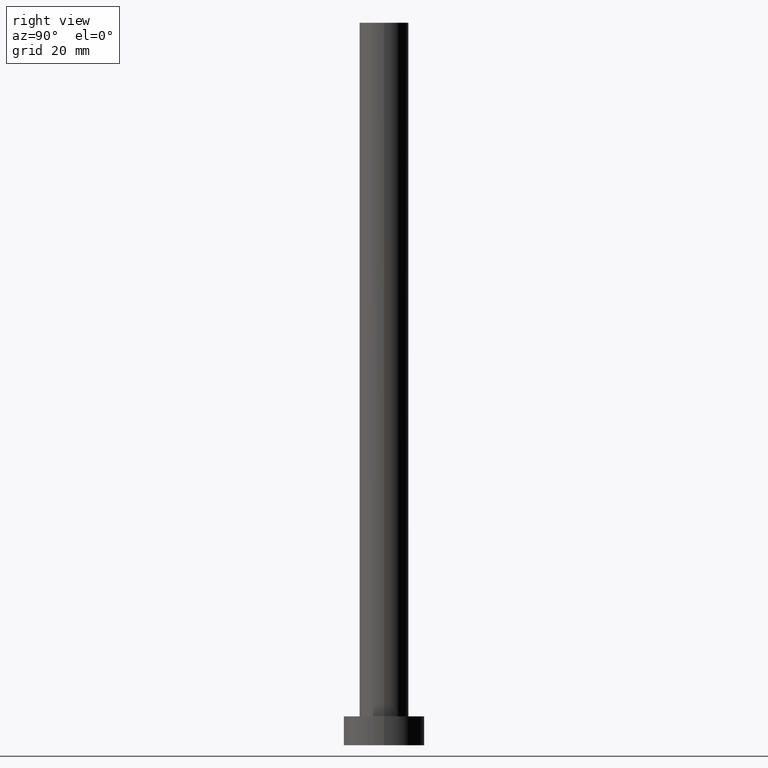
[diagram: clean part render]
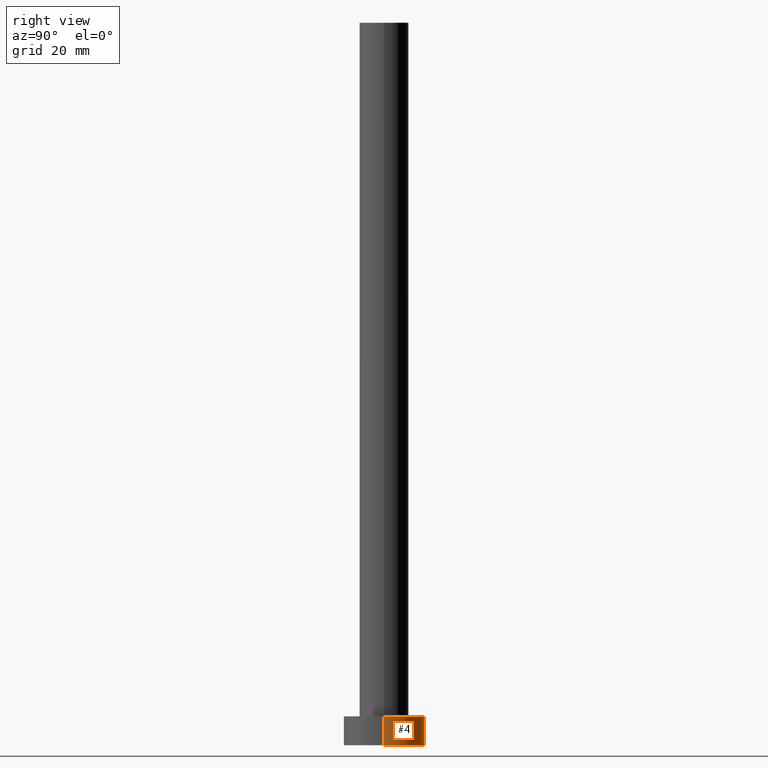
[diagram: same view with one face highlighted and labeled with its STEP entity id]
A machine part, right view. The second image highlights one B-rep face of the part: STEP entity #4.
In plain terms, the highlighted cylindrical surface (partial cylindrical patch) has radius 7 mm, axis along (-0, -0, -1).
Its self-contained STEP definition (entity closure, byte-faithful):
#1 = DIRECTION ( 'NONE',  ( -1.000000000000000000, 0.000000000000000000, 0.000000000000000000 ) ) ;
#4 = ADVANCED_FACE ( 'NONE', ( #84 ), #5, .T. ) ;
#5 = CYLINDRICAL_SURFACE ( 'NONE', #35, 7.000000000000000000 ) ;
#9 = CIRCLE ( 'NONE', #155, 7.000000000000000000 ) ;
#16 = ORIENTED_EDGE ( 'NONE', *, *, #132, .F. ) ;
#17 = CARTESIAN_POINT ( 'NONE',  ( -7.000000000000000000, 0.000000000000000000, 5.000000000000000000 ) ) ;
#18 = DIRECTION ( 'NONE',  ( 1.000000000000000000, 0.000000000000000000, 0.000000000000000000 ) ) ;
#19 = DIRECTION ( 'NONE',  ( 0.000000000000000000, 0.000000000000000000, 1.000000000000000000 ) ) ;
#25 = VERTEX_POINT ( 'NONE', #120 ) ;
#35 = AXIS2_PLACEMENT_3D ( 'NONE', #105, #179, #1 ) ;
#43 = CIRCLE ( 'NONE', #44, 7.000000000000000000 ) ;
#44 = AXIS2_PLACEMENT_3D ( 'NONE', #73, #55, #18 ) ;
#52 = ORIENTED_EDGE ( 'NONE', *, *, #151, .T. ) ;
#55 = DIRECTION ( 'NONE',  ( 0.000000000000000000, 0.000000000000000000, 1.000000000000000000 ) ) ;
#64 = VERTEX_POINT ( 'NONE', #92 ) ;
#69 = LINE ( 'NONE', #137, #134 ) ;
#73 = CARTESIAN_POINT ( 'NONE',  ( 0.000000000000000000, 0.000000000000000000, 5.000000000000000000 ) ) ;
#77 = CARTESIAN_POINT ( 'NONE',  ( 0.000000000000000000, 0.000000000000000000, 0.000000000000000000 ) ) ;
#84 = FACE_OUTER_BOUND ( 'NONE', #230, .T. ) ;
#86 = ORIENTED_EDGE ( 'NONE', *, *, #157, .F. ) ;
#92 = CARTESIAN_POINT ( 'NONE',  ( 7.000000000000000000, 8.572527594031473190E-16, 0.000000000000000000 ) ) ;
#103 = VERTEX_POINT ( 'NONE', #145 ) ;
#104 = DIRECTION ( 'NONE',  ( 1.000000000000000000, 0.000000000000000000, 0.000000000000000000 ) ) ;
#105 = CARTESIAN_POINT ( 'NONE',  ( 0.000000000000000000, 0.000000000000000000, 5.000000000000000000 ) ) ;
#116 = VECTOR ( 'NONE', #152, 1000.000000000000000 ) ;
#120 = CARTESIAN_POINT ( 'NONE',  ( -7.000000000000000000, 0.000000000000000000, 5.000000000000000000 ) ) ;
#132 = EDGE_CURVE ( 'NONE', #25, #103, #194, .T. ) ;
#134 = VECTOR ( 'NONE', #213, 1000.000000000000000 ) ;
#137 = CARTESIAN_POINT ( 'NONE',  ( 7.000000000000000000, 8.572527594031473190E-16, 5.000000000000000000 ) ) ;
#145 = CARTESIAN_POINT ( 'NONE',  ( -7.000000000000000000, 0.000000000000000000, 0.000000000000000000 ) ) ;
#151 = EDGE_CURVE ( 'NONE', #233, #64, #69, .T. ) ;
#152 = DIRECTION ( 'NONE',  ( -0.000000000000000000, -0.000000000000000000, -1.000000000000000000 ) ) ;
#155 = AXIS2_PLACEMENT_3D ( 'NONE', #77, #19, #104 ) ;
#157 = EDGE_CURVE ( 'NONE', #233, #25, #43, .T. ) ;
#163 = ORIENTED_EDGE ( 'NONE', *, *, #204, .T. ) ;
#179 = DIRECTION ( 'NONE',  ( -0.000000000000000000, -0.000000000000000000, -1.000000000000000000 ) ) ;
#194 = LINE ( 'NONE', #17, #116 ) ;
#204 = EDGE_CURVE ( 'NONE', #64, #103, #9, .T. ) ;
#213 = DIRECTION ( 'NONE',  ( -0.000000000000000000, -0.000000000000000000, -1.000000000000000000 ) ) ;
#230 = EDGE_LOOP ( 'NONE', ( #86, #52, #163, #16 ) ) ;
#233 = VERTEX_POINT ( 'NONE', #238 ) ;
#238 = CARTESIAN_POINT ( 'NONE',  ( 7.000000000000000000, 8.572527594031473190E-16, 5.000000000000000000 ) ) ;